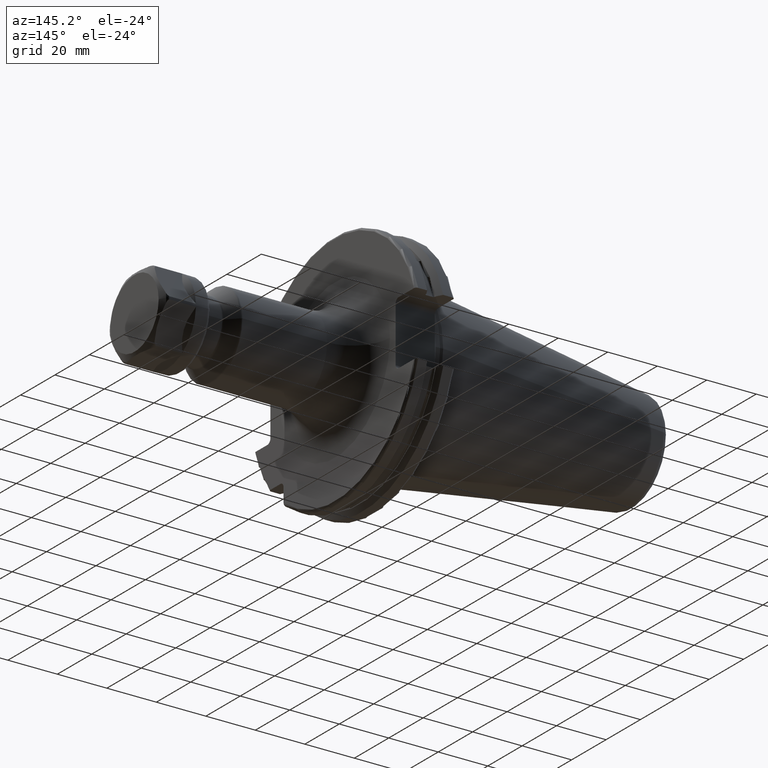
[diagram: clean part render]
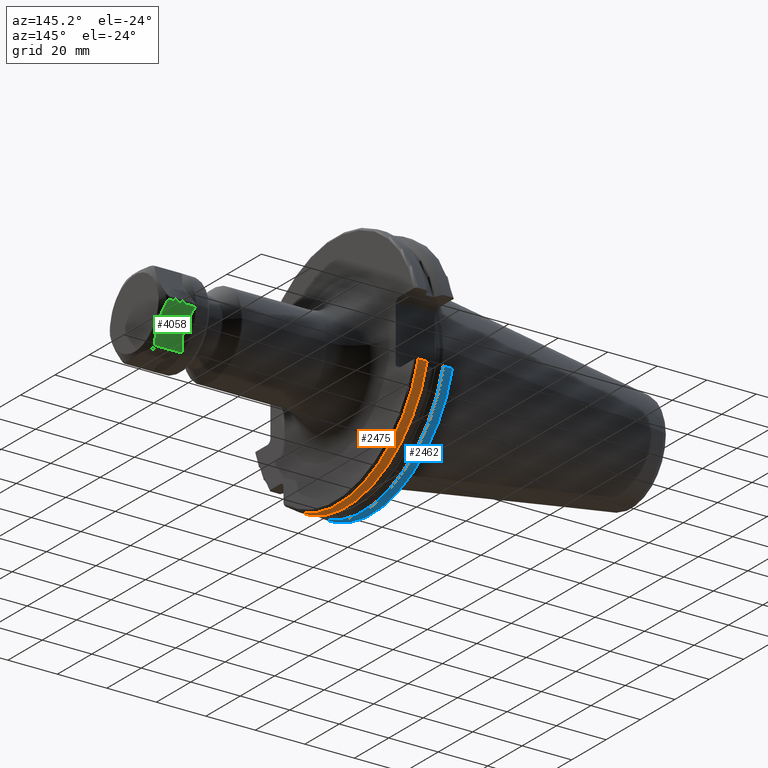
[diagram: same view with three faces highlighted in distinct colors, each labeled with its STEP entity id]
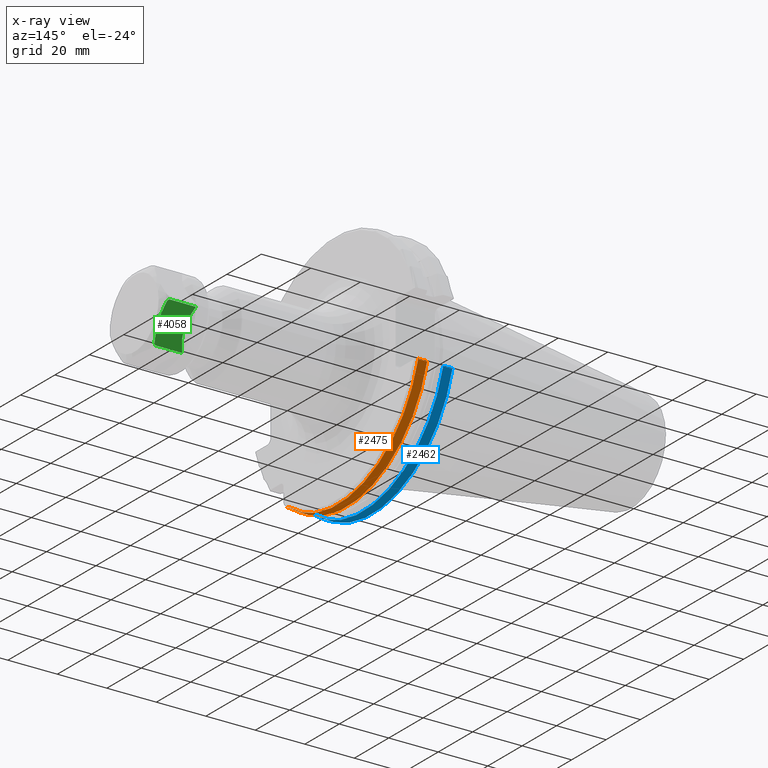
[diagram: x-ray of the same camera — body ghosted, the three highlighted faces saturated]
A machine part, auxiliary view with three faces highlighted in distinct colors.
The next image is the same camera in x-ray (body ghosted, the three faces saturated) — at least one of them is partly hidden behind the body in this view.
Their STEP definitions:

[orange] entity #2475 — the highlighted cylindrical surface (partial cylindrical patch) has radius 48.7375 mm, axis along (1, 0, 0).
#821=DIRECTION('',(1.E0,0.E0,0.E0));
#822=VECTOR('',#821,3.634621614173E0);
#823=CARTESIAN_POINT('',(1.441537838583E1,4.699929686974E1,-1.29E1));
#824=LINE('',#823,#822);
#825=CARTESIAN_POINT('',(1.441537838583E1,0.E0,0.E0));
#826=DIRECTION('',(1.E0,0.E0,0.E0));
#827=DIRECTION('',(0.E0,-6.124647345473E-1,-7.904979120376E-1));
#828=AXIS2_PLACEMENT_3D('',#825,#826,#827);
#830=DIRECTION('',(1.E0,0.E0,0.E0));
#831=VECTOR('',#830,3.634621614173E0);
#832=CARTESIAN_POINT('',(1.441537838583E1,-2.985E1,-3.852689198793E1));
#833=LINE('',#832,#831);
#834=CARTESIAN_POINT('',(1.805E1,0.E0,0.E0));
#835=DIRECTION('',(-1.E0,0.E0,0.E0));
#836=DIRECTION('',(0.E0,9.643354064066E-1,-2.646832521159E-1));
#837=AXIS2_PLACEMENT_3D('',#834,#835,#836);
#903=CARTESIAN_POINT('',(1.441537838583E1,4.699929686974E1,-1.29E1));
#915=CARTESIAN_POINT('',(1.441537838583E1,-2.985E1,-3.852689198793E1));
#1436=VERTEX_POINT('',#903);
#1450=CARTESIAN_POINT('',(1.805E1,4.699929686974E1,-1.29E1));
#1451=VERTEX_POINT('',#1450);
#1485=CARTESIAN_POINT('',(1.805E1,-2.985E1,-3.852689198793E1));
#1486=VERTEX_POINT('',#1485);
#1582=VERTEX_POINT('',#915);
#2463=CARTESIAN_POINT('',(-1.076325E2,0.E0,0.E0));
#2464=DIRECTION('',(1.E0,0.E0,0.E0));
#2465=DIRECTION('',(0.E0,-1.E0,0.E0));
#2466=AXIS2_PLACEMENT_3D('',#2463,#2464,#2465);
#2467=CYLINDRICAL_SURFACE('',#2466,4.87375E1);
#2468=ORIENTED_EDGE('',*,*,#1936,.F.);
#2470=ORIENTED_EDGE('',*,*,#2469,.F.);
#2471=ORIENTED_EDGE('',*,*,#2365,.T.);
#2472=ORIENTED_EDGE('',*,*,#1887,.F.);
#2473=EDGE_LOOP('',(#2468,#2470,#2471,#2472));
#2474=FACE_OUTER_BOUND('',#2473,.F.);
#2475=ADVANCED_FACE('',(#2474),#2467,.T.);
#829=CIRCLE('',#828,4.87375E1);
#838=CIRCLE('',#837,4.87375E1);
#1887=EDGE_CURVE('',#1451,#1486,#838,.T.);
#1936=EDGE_CURVE('',#1436,#1451,#824,.T.);
#2365=EDGE_CURVE('',#1582,#1486,#833,.T.);
#2469=EDGE_CURVE('',#1582,#1436,#829,.T.);

[blue] entity #2462 — the highlighted cylindrical surface (partial cylindrical patch) has radius 48.7375 mm, axis along (1, 0, 0).
#776=CARTESIAN_POINT('',(4.2E0,0.E0,0.E0));
#777=DIRECTION('',(-1.E0,0.E0,0.E0));
#778=DIRECTION('',(0.E0,9.643354064066E-1,-2.646832521159E-1));
#779=AXIS2_PLACEMENT_3D('',#776,#777,#778);
#808=DIRECTION('',(1.E0,0.E0,0.E0));
#809=VECTOR('',#808,3.734621614173E0);
#810=CARTESIAN_POINT('',(4.2E0,4.699929686974E1,-1.29E1));
#811=LINE('',#810,#809);
#812=DIRECTION('',(1.E0,0.E0,0.E0));
#813=VECTOR('',#812,3.734621614173E0);
#814=CARTESIAN_POINT('',(4.2E0,-2.985E1,-3.852689198793E1));
#815=LINE('',#814,#813);
#816=CARTESIAN_POINT('',(7.934621614173E0,0.E0,0.E0));
#817=DIRECTION('',(1.E0,0.E0,0.E0));
#818=DIRECTION('',(0.E0,-6.124647345473E-1,-7.904979120376E-1));
#819=AXIS2_PLACEMENT_3D('',#816,#817,#818);
#875=CARTESIAN_POINT('',(7.934621614173E0,4.699929686974E1,-1.29E1));
#882=CARTESIAN_POINT('',(7.934621614173E0,-2.985E1,-3.852689198793E1));
#1438=VERTEX_POINT('',#875);
#1448=CARTESIAN_POINT('',(4.2E0,4.699929686974E1,-1.29E1));
#1449=VERTEX_POINT('',#1448);
#1487=CARTESIAN_POINT('',(4.2E0,-2.985E1,-3.852689198793E1));
#1488=VERTEX_POINT('',#1487);
#1583=VERTEX_POINT('',#882);
#2450=CARTESIAN_POINT('',(-1.076325E2,0.E0,0.E0));
#2451=DIRECTION('',(1.E0,0.E0,0.E0));
#2452=DIRECTION('',(0.E0,-1.E0,0.E0));
#2453=AXIS2_PLACEMENT_3D('',#2450,#2451,#2452);
#2454=CYLINDRICAL_SURFACE('',#2453,4.87375E1);
#2455=ORIENTED_EDGE('',*,*,#1920,.F.);
#2456=ORIENTED_EDGE('',*,*,#2432,.T.);
#2457=ORIENTED_EDGE('',*,*,#2376,.T.);
#2459=ORIENTED_EDGE('',*,*,#2458,.T.);
#2460=EDGE_LOOP('',(#2455,#2456,#2457,#2459));
#2461=FACE_OUTER_BOUND('',#2460,.F.);
#2462=ADVANCED_FACE('',(#2461),#2454,.T.);
#780=CIRCLE('',#779,4.87375E1);
#820=CIRCLE('',#819,4.87375E1);
#1920=EDGE_CURVE('',#1449,#1438,#811,.T.);
#2376=EDGE_CURVE('',#1488,#1583,#815,.T.);
#2432=EDGE_CURVE('',#1449,#1488,#780,.T.);
#2458=EDGE_CURVE('',#1583,#1438,#820,.T.);

[green] entity #4058 — the highlighted planar face has unit normal (0, -0.866, 0.5).
#3312=CARTESIAN_POINT('',(1.762879311067E1,9.706304892912E0,-1.318818677172E1));
#3313=CARTESIAN_POINT('',(1.783518476881E1,1.015192098345E1,-1.241635706224E1));
#3314=CARTESIAN_POINT('',(1.817379271881E1,1.103673598687E1,-1.088381252102E1));
#3315=CARTESIAN_POINT('',(1.843326934202E1,1.233775072113E1,-8.630388899882E0));
#3316=CARTESIAN_POINT('',(1.843317407038E1,1.364378086319E1,-6.368278337620E0));
#3317=CARTESIAN_POINT('',(1.817365600931E1,1.494440287302E1,-4.115534935150E0));
#3318=CARTESIAN_POINT('',(1.783512110256E1,1.582897859061E1,-2.583404849145E0));
#3319=CARTESIAN_POINT('',(1.762879311067E1,1.627445722062E1,-1.811813228277E0));
#3404=CARTESIAN_POINT('',(1.654626135594E1,8.990381056767E0,-1.442820323028E1));
#3405=CARTESIAN_POINT('',(1.663133375969E1,8.990381056767E0,-1.442820323028E1));
#3406=CARTESIAN_POINT('',(1.679554974256E1,9.008319998068E0,-1.439713207251E1));
#3407=CARTESIAN_POINT('',(1.702967586056E1,9.085449864247E0,-1.426353922550E1));
#3408=CARTESIAN_POINT('',(1.723504960512E1,9.205598196371E0,-1.405543620982E1));
#3409=CARTESIAN_POINT('',(1.740538646210E1,9.357706797040E0,-1.379197638519E1));
#3410=CARTESIAN_POINT('',(1.753869894456E1,9.531335419002E0,-1.349124279031E1));
#3411=CARTESIAN_POINT('',(1.760147975856E1,9.647333182045E0,-1.329032877115E1));
#3412=CARTESIAN_POINT('',(1.762879311067E1,9.706304892912E0,-1.318818677172E1));
#3504=CARTESIAN_POINT('',(1.762879311067E1,1.627445722062E1,-1.811813228277E0));
#3505=CARTESIAN_POINT('',(1.760135930288E1,1.633368900493E1,-1.709220768439E0));
#3506=CARTESIAN_POINT('',(1.753829156841E1,1.645016226804E1,-1.507483158997E0));
#3507=CARTESIAN_POINT('',(1.740404374214E1,1.662460489838E1,-1.205339660241E0));
#3508=CARTESIAN_POINT('',(1.723276370862E1,1.677685693130E1,
-9.416314036774E-1));
#3509=CARTESIAN_POINT('',(1.702726259196E1,1.689631751599E1,
-7.347196014845E-1));
#3510=CARTESIAN_POINT('',(1.679442486846E1,1.697258284358E1,
-6.026241792443E-1));
#3511=CARTESIAN_POINT('',(1.663092243804E1,1.699038105677E1,
-5.717967697245E-1));
#3512=CARTESIAN_POINT('',(1.654626135594E1,1.699038105677E1,
-5.717967697245E-1));
#3524=CARTESIAN_POINT('',(6.010094158030E0,1.699038105677E1,
-5.717967697245E-1));
#3525=CARTESIAN_POINT('',(6.248860202043E0,1.673667922571E1,-1.011221231093E0));
#3526=CARTESIAN_POINT('',(6.673358389767E0,1.624777485462E1,-1.858028441906E0));
#3527=CARTESIAN_POINT('',(7.159539044282E0,1.557555300184E1,-3.022350844643E0));
#3528=CARTESIAN_POINT('',(7.516203491396E0,1.495849625540E1,-4.091124481539E0));
#3529=CARTESIAN_POINT('',(7.761854781701E0,1.439387442582E1,-5.069078174002E0));
#3530=CARTESIAN_POINT('',(7.915629231596E0,1.387929598491E1,-5.960354190990E0));
#3531=CARTESIAN_POINT('',(7.995386624528E0,1.340806721507E1,-6.776546314333E0));
#3532=CARTESIAN_POINT('',(8.017308991082E0,1.298987968562E1,-7.500868541609E0));
#3533=CARTESIAN_POINT('',(7.995278327489E0,1.257168576552E1,-8.225200989965E0));
#3534=CARTESIAN_POINT('',(7.915368146845E0,1.210033817211E1,-9.041601465272E0));
#3535=CARTESIAN_POINT('',(7.761438264416E0,1.158573896458E1,-9.932904124940E0));
#3536=CARTESIAN_POINT('',(7.515626893748E0,1.102116355431E1,-1.091081217801E1));
#3537=CARTESIAN_POINT('',(7.158945869490E0,1.040420274504E1,-1.197928992813E1));
#3538=CARTESIAN_POINT('',(6.672583855436E0,9.732359832832E0,-1.314344010025E1));
#3539=CARTESIAN_POINT('',(6.248870178215E0,9.243432783046E0,-1.398908210096E1));
#3540=CARTESIAN_POINT('',(6.010360585263E0,8.990019908335E0,-1.442800607525E1));
#3542=DIRECTION('',(9.999999992374E-1,3.427788848595E-5,-1.871268783821E-5));
#3543=VECTOR('',#3542,1.053590077872E1);
#3544=CARTESIAN_POINT('',(6.010360585263E0,8.990019908335E0,-1.442800607525E1));
#3545=LINE('',#3544,#3543);
#3546=DIRECTION('',(-1.E0,0.E0,0.E0));
#3547=VECTOR('',#3546,1.053616719791E1);
#3548=CARTESIAN_POINT('',(1.654626135594E1,1.699038105677E1,
-5.717967697245E-1));
#3549=LINE('',#3548,#3547);
#3804=VERTEX_POINT('',#3312);
#3805=VERTEX_POINT('',#3319);
#3816=VERTEX_POINT('',#3512);
#3817=VERTEX_POINT('',#3404);
#3832=CARTESIAN_POINT('',(6.010022197914E0,1.699045297670E1,
-5.717991917679E-1));
#3833=CARTESIAN_POINT('',(6.010022197914E0,8.990424116185E0,-1.442827233047E1));
#3834=VERTEX_POINT('',#3832);
#3835=VERTEX_POINT('',#3833);
#4044=CARTESIAN_POINT('',(1.9E1,1.732050807569E1,0.E0));
#4045=DIRECTION('',(0.E0,-8.660254037844E-1,5.E-1));
#4046=DIRECTION('',(0.E0,-5.E-1,-8.660254037844E-1));
#4047=AXIS2_PLACEMENT_3D('',#4044,#4045,#4046);
#4048=PLANE('',#4047);
#4050=ORIENTED_EDGE('',*,*,#4049,.T.);
#4051=ORIENTED_EDGE('',*,*,#3930,.T.);
#4052=ORIENTED_EDGE('',*,*,#3955,.T.);
#4053=ORIENTED_EDGE('',*,*,#3872,.T.);
#4054=ORIENTED_EDGE('',*,*,#4034,.T.);
#4055=ORIENTED_EDGE('',*,*,#3934,.T.);
#4056=EDGE_LOOP('',(#4050,#4051,#4052,#4053,#4054,#4055));
#4057=FACE_OUTER_BOUND('',#4056,.F.);
#4058=ADVANCED_FACE('',(#4057),#4048,.F.);
#3320=B_SPLINE_CURVE_WITH_KNOTS('',3,(#3312,#3313,#3314,#3315,#3316,#3317,#3318,
#3319),.UNSPECIFIED.,.F.,.F.,(4,1,1,1,1,4),(0.E0,2.E-1,4.E-1,6.E-1,8.E-1,1.E0),
.UNSPECIFIED.);
#3413=B_SPLINE_CURVE_WITH_KNOTS('',3,(#3404,#3405,#3406,#3407,#3408,#3409,#3410,
#3411,#3412),.UNSPECIFIED.,.F.,.F.,(4,1,1,1,1,1,4),(0.E0,1.666666666667E-1,
3.333333333333E-1,5.E-1,6.666666666667E-1,8.333333333333E-1,1.E0),
.UNSPECIFIED.);
#3513=B_SPLINE_CURVE_WITH_KNOTS('',3,(#3504,#3505,#3506,#3507,#3508,#3509,#3510,
#3511,#3512),.UNSPECIFIED.,.F.,.F.,(4,1,1,1,1,1,4),(0.E0,1.666666666667E-1,
3.333333333333E-1,5.E-1,6.666666666667E-1,8.333333333333E-1,1.E0),
.UNSPECIFIED.);
#3541=B_SPLINE_CURVE_WITH_KNOTS('',3,(#3524,#3525,#3526,#3527,#3528,#3529,#3530,
#3531,#3532,#3533,#3534,#3535,#3536,#3537,#3538,#3539,#3540),.UNSPECIFIED.,.F.,
.F.,(4,1,1,1,1,1,1,1,1,1,1,1,1,1,4),(0.E0,7.142857142857E-2,1.428571428571E-1,
2.142857142857E-1,2.857142857143E-1,3.571428571429E-1,4.285714285714E-1,5.E-1,
5.714285714286E-1,6.428571428571E-1,7.142857142857E-1,7.857142857143E-1,
8.571428571429E-1,9.285714285714E-1,1.E0),.UNSPECIFIED.);
#3872=EDGE_CURVE('',#3804,#3805,#3320,.T.);
#3930=EDGE_CURVE('',#3835,#3817,#3545,.T.);
#3934=EDGE_CURVE('',#3816,#3834,#3549,.T.);
#3955=EDGE_CURVE('',#3817,#3804,#3413,.T.);
#4034=EDGE_CURVE('',#3805,#3816,#3513,.T.);
#4049=EDGE_CURVE('',#3834,#3835,#3541,.T.);